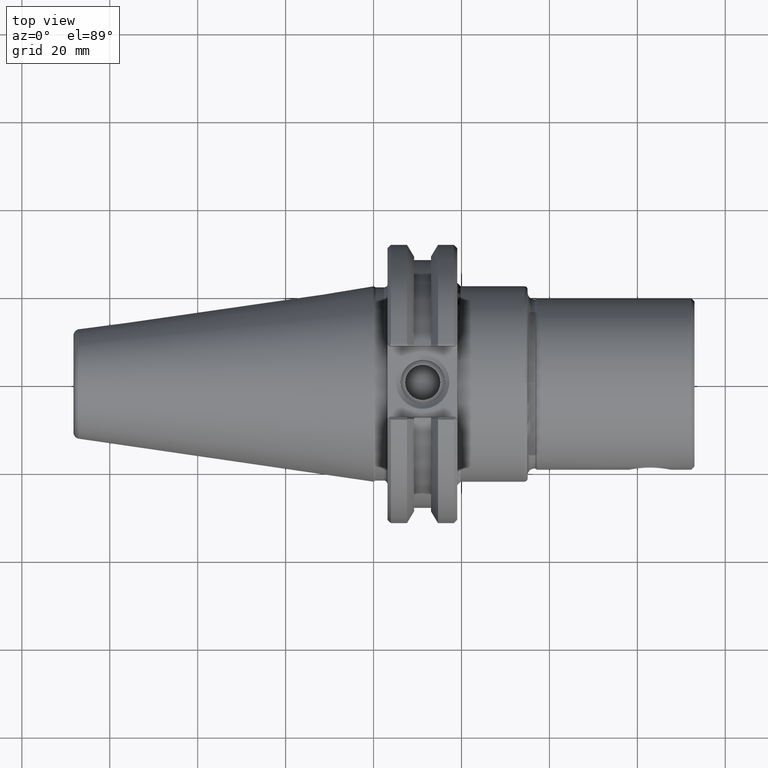
[diagram: clean part render]
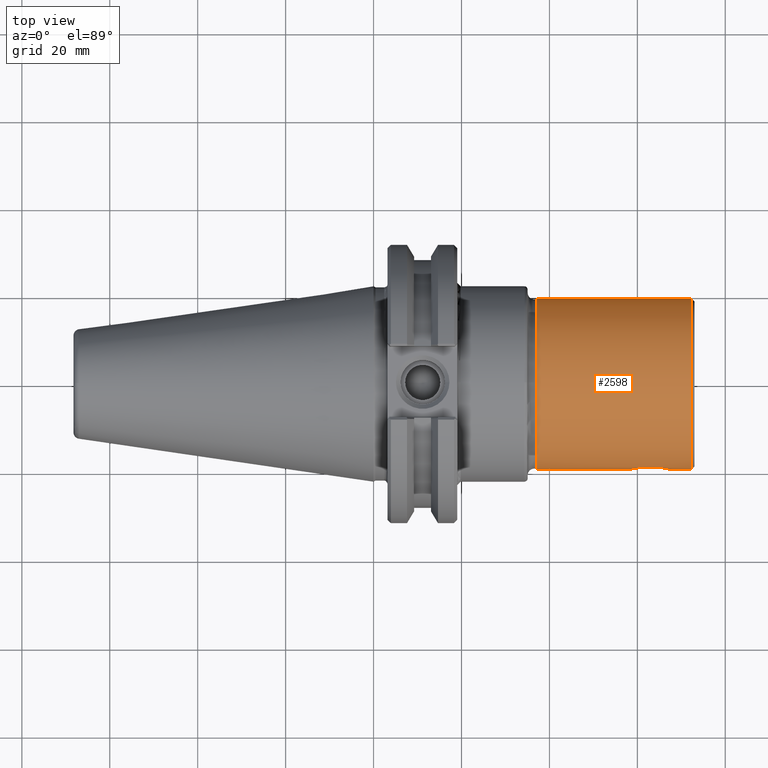
[diagram: same view with one face highlighted and labeled with its STEP entity id]
A machine part, top view. The second image highlights one B-rep face of the part: STEP entity #2598.
In plain terms, the highlighted cylindrical surface (bore or boss wall) has radius 19.4945 mm, axis along (1, 0, 0).
Its self-contained STEP definition (entity closure, byte-faithful):
#248=LINE('',#4240,#424);
#249=LINE('',#4241,#425);
#424=VECTOR('',#3350,0.7675);
#425=VECTOR('',#3351,0.7675);
#558=CYLINDRICAL_SURFACE('',#2882,0.7675);
#630=FACE_OUTER_BOUND('',#779,.T.);
#779=EDGE_LOOP('',(#1994,#1995,#1996,#1997,#1998,#1999,#2000,#2001,#2002,
#2003));
#946=CIRCLE('',#2880,0.7675);
#947=CIRCLE('',#2881,0.7675);
#948=CIRCLE('',#2883,0.7675);
#949=CIRCLE('',#2884,0.7675);
#1030=B_SPLINE_CURVE_WITH_KNOTS('',3,(#4154,#4155,#4156,#4157,#4158,#4159,
#4160,#4161,#4162,#4163,#4164,#4165,#4166,#4167,#4168,#4169,#4170,#4171),
 .UNSPECIFIED.,.F.,.F.,(4,2,2,2,2,2,2,2,4),(0.70685277938481,0.884941145752523,
1.06302951212024,1.23836753544493,1.41370555876962,1.58904358209431,1.764381605419,
1.94246997178672,2.12055833815443),.UNSPECIFIED.);
#1031=B_SPLINE_CURVE_WITH_KNOTS('',3,(#4172,#4173,#4174,#4175,#4176,#4177,
#4178,#4179,#4180,#4181,#4182,#4183,#4184,#4185,#4186,#4187,#4188,#4189,
#4190),.UNSPECIFIED.,.F.,.F.,(4,2,2,2,3,2,2,2,4),(2.12055833815443,2.29864670452214,
2.47673507088985,2.65207309421455,2.82741111753924,3.00274914086393,3.17808716418862,
3.35617553055634,3.53426389692405),.UNSPECIFIED.);
#1139=VERTEX_POINT('',#4152);
#1140=VERTEX_POINT('',#4153);
#1154=VERTEX_POINT('',#4230);
#1155=VERTEX_POINT('',#4231);
#1156=VERTEX_POINT('',#4236);
#1157=VERTEX_POINT('',#4237);
#1442=EDGE_CURVE('',#1139,#1140,#1030,.T.);
#1443=EDGE_CURVE('',#1140,#1139,#1031,.T.);
#1463=EDGE_CURVE('',#1154,#1155,#946,.T.);
#1464=EDGE_CURVE('',#1155,#1154,#947,.T.);
#1466=EDGE_CURVE('',#1156,#1157,#948,.T.);
#1467=EDGE_CURVE('',#1157,#1156,#949,.T.);
#1468=EDGE_CURVE('',#1157,#1140,#248,.T.);
#1469=EDGE_CURVE('',#1139,#1155,#249,.T.);
#1994=ORIENTED_EDGE('',*,*,#1466,.F.);
#1995=ORIENTED_EDGE('',*,*,#1467,.F.);
#1996=ORIENTED_EDGE('',*,*,#1468,.T.);
#1997=ORIENTED_EDGE('',*,*,#1443,.T.);
#1998=ORIENTED_EDGE('',*,*,#1469,.T.);
#1999=ORIENTED_EDGE('',*,*,#1464,.T.);
#2000=ORIENTED_EDGE('',*,*,#1463,.T.);
#2001=ORIENTED_EDGE('',*,*,#1469,.F.);
#2002=ORIENTED_EDGE('',*,*,#1442,.T.);
#2003=ORIENTED_EDGE('',*,*,#1468,.F.);
#2598=ADVANCED_FACE('',(#630),#558,.T.);
#2880=AXIS2_PLACEMENT_3D('',#4232,#3339,#3340);
#2881=AXIS2_PLACEMENT_3D('',#4233,#3341,#3342);
#2882=AXIS2_PLACEMENT_3D('',#4235,#3344,#3345);
#2883=AXIS2_PLACEMENT_3D('',#4238,#3346,#3347);
#2884=AXIS2_PLACEMENT_3D('',#4239,#3348,#3349);
#3339=DIRECTION('center_axis',(1.,0.,0.));
#3340=DIRECTION('ref_axis',(0.,1.,0.));
#3341=DIRECTION('center_axis',(1.,0.,0.));
#3342=DIRECTION('ref_axis',(0.,1.,0.));
#3344=DIRECTION('center_axis',(1.,0.,0.));
#3345=DIRECTION('ref_axis',(0.,1.,0.));
#3346=DIRECTION('center_axis',(1.,0.,0.));
#3347=DIRECTION('ref_axis',(0.,1.,0.));
#3348=DIRECTION('center_axis',(1.,0.,0.));
#3349=DIRECTION('ref_axis',(0.,1.,0.));
#3350=DIRECTION('',(-1.,0.,0.));
#3351=DIRECTION('',(-1.,0.,0.));
#4152=CARTESIAN_POINT('',(2.288,-0.7675,0.));
#4153=CARTESIAN_POINT('',(2.668,-0.7675,0.));
#4154=CARTESIAN_POINT('Ctrl Pts',(2.288,-0.7675,2.18547839493141E-17));
#4155=CARTESIAN_POINT('Ctrl Pts',(2.288,-0.7675,0.0233711766886762));
#4156=CARTESIAN_POINT('Ctrl Pts',(2.29323215841143,-0.766324155206217,0.0480279793702651));
#4157=CARTESIAN_POINT('Ctrl Pts',(2.3138083602715,-0.762211215435744,0.0927009113965022));
#4158=CARTESIAN_POINT('Ctrl Pts',(2.3291357369547,-0.759339360047462,0.112730697447296));
#4159=CARTESIAN_POINT('Ctrl Pts',(2.3633938026503,-0.75411404560443,0.143557905740642));
#4160=CARTESIAN_POINT('Ctrl Pts',(2.3845449094683,-0.751408431519194,0.156585545891352));
#4161=CARTESIAN_POINT('Ctrl Pts',(2.43034099120743,-0.747621307001738,0.173770085254683));
#4162=CARTESIAN_POINT('Ctrl Pts',(2.45498976071854,-0.746590817697497,0.177928077969115));
#4163=CARTESIAN_POINT('Ctrl Pts',(2.50101023928146,-0.746590817697497,0.177928077969115));
#4164=CARTESIAN_POINT('Ctrl Pts',(2.52565900879256,-0.747621307001738,0.173770085254683));
#4165=CARTESIAN_POINT('Ctrl Pts',(2.5714550905317,-0.751408431519194,0.156585545891352));
#4166=CARTESIAN_POINT('Ctrl Pts',(2.5926061973497,-0.75411404560443,0.143557905740642));
#4167=CARTESIAN_POINT('Ctrl Pts',(2.6268642630453,-0.759339360047462,0.112730697447296));
#4168=CARTESIAN_POINT('Ctrl Pts',(2.6421916397285,-0.762211215435744,0.0927009113965022));
#4169=CARTESIAN_POINT('Ctrl Pts',(2.66276784158857,-0.766324155206217,0.0480279793702652));
#4170=CARTESIAN_POINT('Ctrl Pts',(2.668,-0.7675,0.0233711766886762));
#4171=CARTESIAN_POINT('Ctrl Pts',(2.668,-0.7675,-2.73184799366426E-17));
#4172=CARTESIAN_POINT('Ctrl Pts',(2.668,-0.7675,5.46369598732853E-18));
#4173=CARTESIAN_POINT('Ctrl Pts',(2.668,-0.7675,-0.0233711766886762));
#4174=CARTESIAN_POINT('Ctrl Pts',(2.66276784158857,-0.766324155206217,-0.0480279793702651));
#4175=CARTESIAN_POINT('Ctrl Pts',(2.6421916397285,-0.762211215435744,-0.0927009113965021));
#4176=CARTESIAN_POINT('Ctrl Pts',(2.6268642630453,-0.759339360047462,-0.112730697447296));
#4177=CARTESIAN_POINT('Ctrl Pts',(2.5926061973497,-0.75411404560443,-0.143557905740642));
#4178=CARTESIAN_POINT('Ctrl Pts',(2.5714550905317,-0.751408431519194,-0.156585545891352));
#4179=CARTESIAN_POINT('Ctrl Pts',(2.52565900879256,-0.747621307001738,-0.173770085254684));
#4180=CARTESIAN_POINT('Ctrl Pts',(2.50101023928146,-0.746590817697497,-0.177928077969115));
#4181=CARTESIAN_POINT('Ctrl Pts',(2.478,-0.746590817697497,-0.177928077969115));
#4182=CARTESIAN_POINT('Ctrl Pts',(2.45498976071854,-0.746590817697497,-0.177928077969115));
#4183=CARTESIAN_POINT('Ctrl Pts',(2.43034099120743,-0.747621307001738,-0.173770085254683));
#4184=CARTESIAN_POINT('Ctrl Pts',(2.3845449094683,-0.751408431519194,-0.156585545891352));
#4185=CARTESIAN_POINT('Ctrl Pts',(2.3633938026503,-0.75411404560443,-0.143557905740642));
#4186=CARTESIAN_POINT('Ctrl Pts',(2.3291357369547,-0.759339360047462,-0.112730697447296));
#4187=CARTESIAN_POINT('Ctrl Pts',(2.3138083602715,-0.762211215435744,-0.0927009113965022));
#4188=CARTESIAN_POINT('Ctrl Pts',(2.29323215841143,-0.766324155206217,-0.0480279793702652));
#4189=CARTESIAN_POINT('Ctrl Pts',(2.288,-0.7675,-0.0233711766886762));
#4190=CARTESIAN_POINT('Ctrl Pts',(2.288,-0.7675,-1.63910879619856E-17));
#4230=CARTESIAN_POINT('',(1.46,0.7675,0.));
#4231=CARTESIAN_POINT('',(1.46,-0.7675,-9.39916418345594E-17));
#4232=CARTESIAN_POINT('Origin',(1.46,0.,0.));
#4233=CARTESIAN_POINT('Origin',(1.46,0.,0.));
#4235=CARTESIAN_POINT('Origin',(2.15225,0.,0.));
#4236=CARTESIAN_POINT('',(2.8445,0.7675,0.));
#4237=CARTESIAN_POINT('',(2.8445,-0.7675,-9.39916418345594E-17));
#4238=CARTESIAN_POINT('Origin',(2.8445,0.,0.));
#4239=CARTESIAN_POINT('Origin',(2.8445,0.,0.));
#4240=CARTESIAN_POINT('',(2.15225,-0.7675,-9.39916418345594E-17));
#4241=CARTESIAN_POINT('',(2.15225,-0.7675,-9.39916418345594E-17));